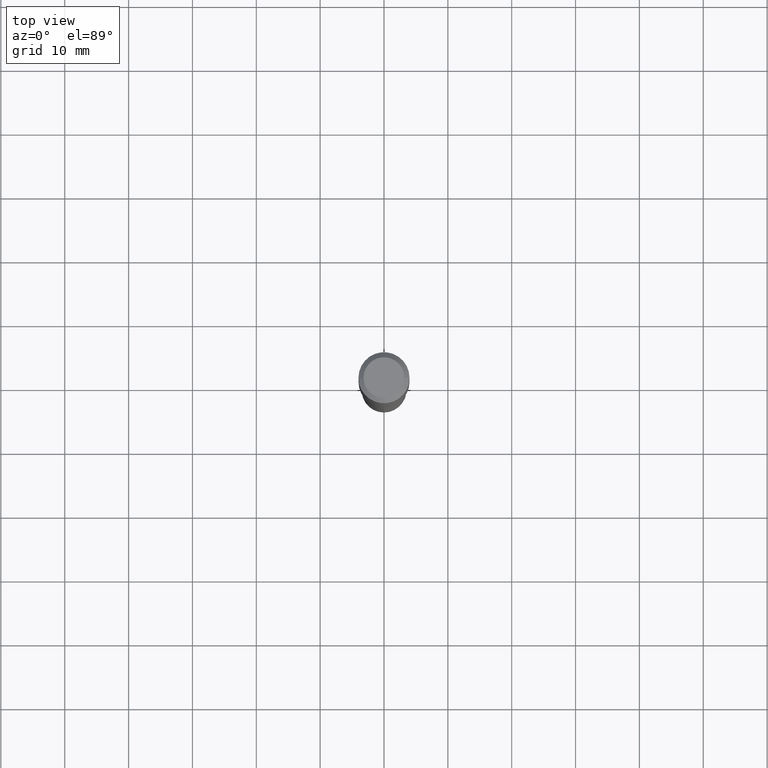
[diagram: clean part render]
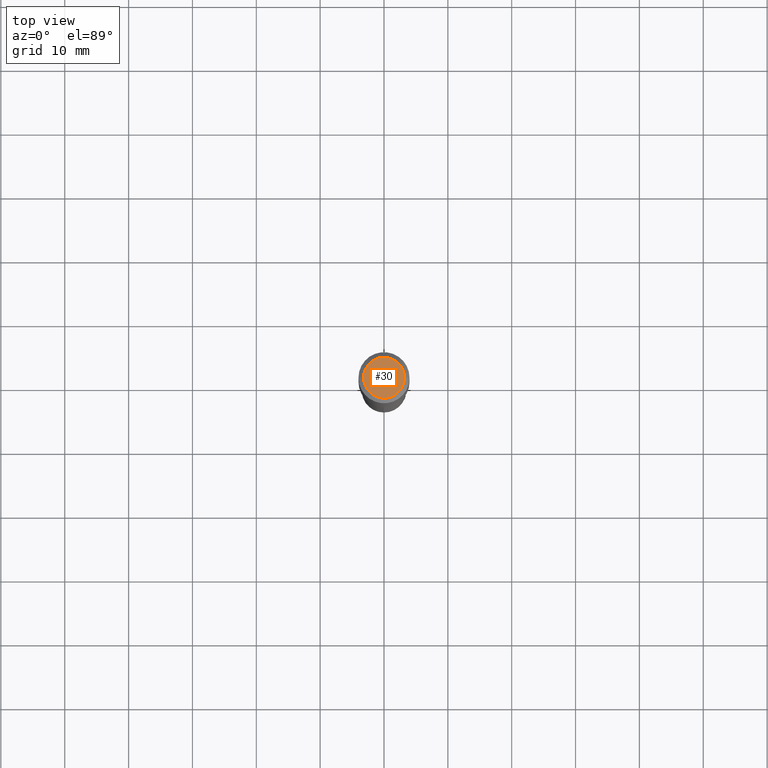
[diagram: same view with one face highlighted and labeled with its STEP entity id]
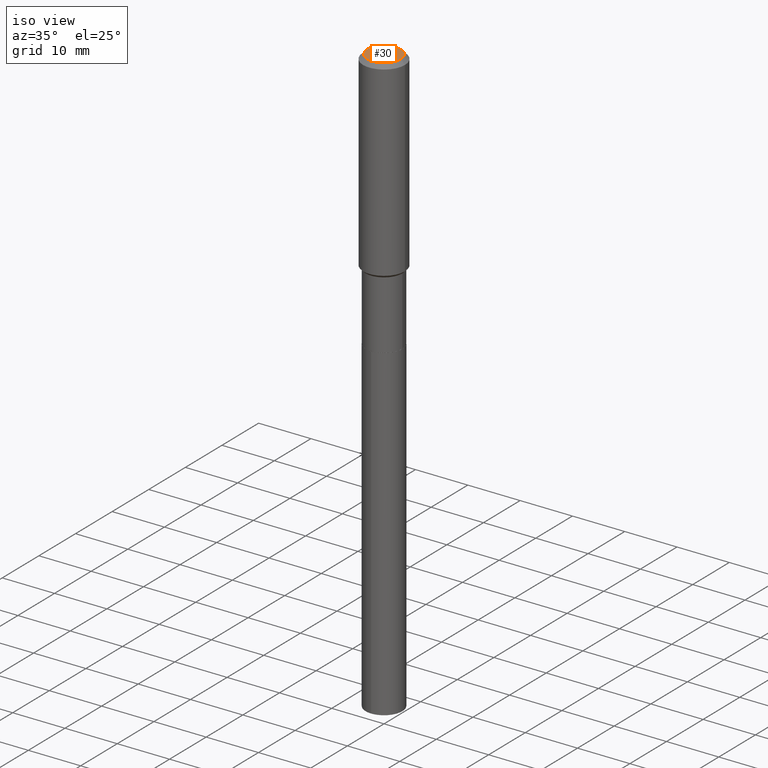
[diagram: same view with one face highlighted and labeled with its STEP entity id]
A machine part, top view. The second image highlights one B-rep face of the part: STEP entity #30.
A second angle (iso view) of the same face is appended — the face is thin or edge-on in the first view.
In plain terms, the highlighted planar face has unit normal (0, -0, -1).
Its self-contained STEP definition (entity closure, byte-faithful):
#5 = CARTESIAN_POINT ( 'NONE',  ( -9.439721640706201686E-47, 1.347742071746726764E-32, 3.860086710912459732E-18 ) ) ;
#22 = DIRECTION ( 'NONE',  ( 1.000000000000000000, -6.982962677686265922E-15, 4.876281427513067258E-29 ) ) ;
#30 = ADVANCED_FACE ( 'NONE', ( #63 ), #216, .F. ) ;
#34 = AXIS2_PLACEMENT_3D ( 'NONE', #5, #301, #162 ) ;
#54 = VERTEX_POINT ( 'NONE', #229 ) ;
#59 = VERTEX_POINT ( 'NONE', #341 ) ;
#63 = FACE_OUTER_BOUND ( 'NONE', #393, .T. ) ;
#68 = ORIENTED_EDGE ( 'NONE', *, *, #110, .T. ) ;
#108 = AXIS2_PLACEMENT_3D ( 'NONE', #457, #265, #22 ) ;
#110 = EDGE_CURVE ( 'NONE', #59, #54, #244, .T. ) ;
#144 = DIRECTION ( 'NONE',  ( 2.438088387897960049E-29, -3.491481338843145188E-15, -1.000000000000000000 ) ) ;
#147 = CARTESIAN_POINT ( 'NONE',  ( -4.719860820353100843E-47, 6.738710358733633822E-33, 1.930043355456229866E-18 ) ) ;
#162 = DIRECTION ( 'NONE',  ( 1.000000000000000000, -6.982962677686265922E-15, 4.876281427513067258E-29 ) ) ;
#216 = PLANE ( 'NONE',  #456 ) ;
#229 = CARTESIAN_POINT ( 'NONE',  ( -0.1260000000000000009, 9.348441284752484904E-16, 3.860086710906114178E-18 ) ) ;
#244 = CIRCLE ( 'NONE', #34, 0.1260000000000000009 ) ;
#245 = CIRCLE ( 'NONE', #108, 0.1260000000000000009 ) ;
#265 = DIRECTION ( 'NONE',  ( -2.445468806185136597E-29, 3.491481338843145583E-15, 1.000000000000000000 ) ) ;
#288 = ORIENTED_EDGE ( 'NONE', *, *, #332, .T. ) ;
#301 = DIRECTION ( 'NONE',  ( -2.445468806185136597E-29, 3.491481338843145583E-15, 1.000000000000000000 ) ) ;
#332 = EDGE_CURVE ( 'NONE', #54, #59, #245, .T. ) ;
#341 = CARTESIAN_POINT ( 'NONE',  ( 0.1260000000000000009, -1.027466422270894443E-15, 3.860086710919128072E-18 ) ) ;
#393 = EDGE_LOOP ( 'NONE', ( #288, #68 ) ) ;
#433 = DIRECTION ( 'NONE',  ( -1.000000000000000000, 6.982962677686265922E-15, -4.876176775795935793E-29 ) ) ;
#456 = AXIS2_PLACEMENT_3D ( 'NONE', #147, #144, #433 ) ;
#457 = CARTESIAN_POINT ( 'NONE',  ( -9.439721640706201686E-47, 1.347742071746726764E-32, 3.860086710912459732E-18 ) ) ;